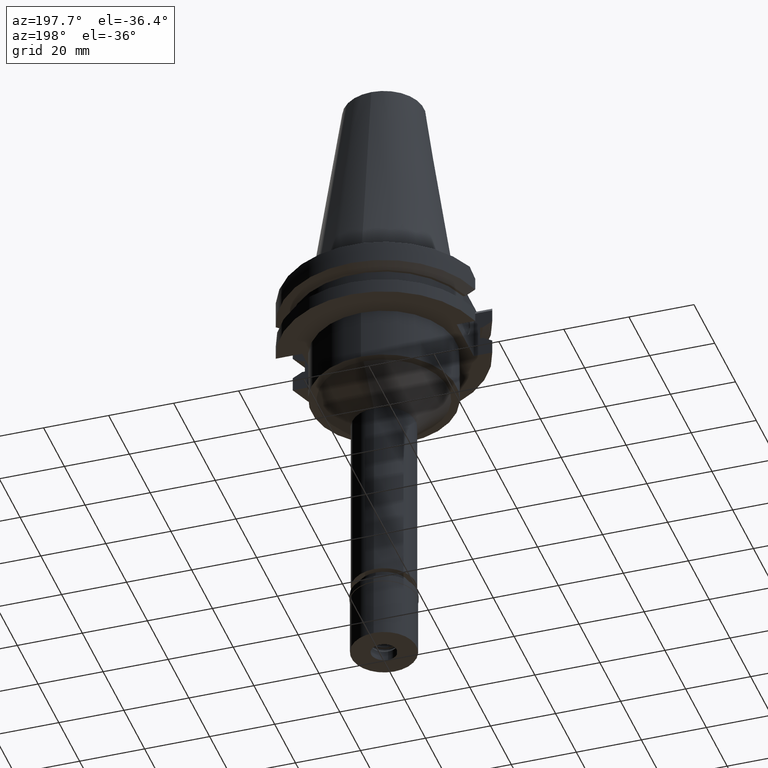
[diagram: clean part render]
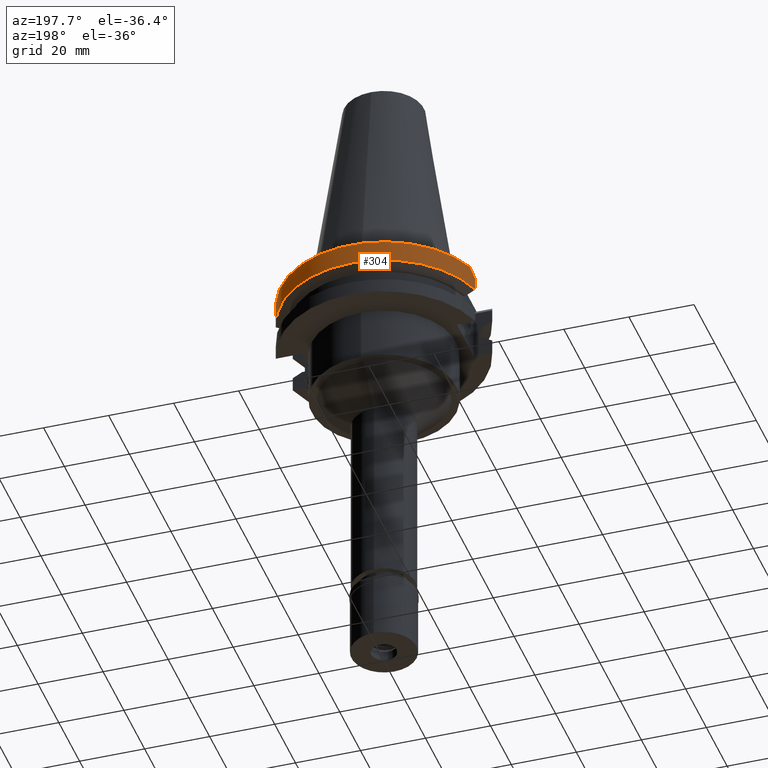
[diagram: same view with one face highlighted and labeled with its STEP entity id]
A machine part, auxiliary view. The second image highlights one B-rep face of the part: STEP entity #304.
In plain terms, the highlighted cylindrical surface (partial cylindrical patch) has radius 31.75 mm, axis along (0, 0, -1).
Its self-contained STEP definition (entity closure, byte-faithful):
#25 = CARTESIAN_POINT ( 'NONE',  ( 30.67550165944999918, 8.189999874299001448, -7.601334354241999769 ) ) ;
#49 = AXIS2_PLACEMENT_3D ( 'NONE', #1219, #1985, #729 ) ;
#155 = CARTESIAN_POINT ( 'NONE',  ( 30.67550165944999918, 8.189999874299001448, -7.601334354241999769 ) ) ;
#200 = CARTESIAN_POINT ( 'NONE',  ( 30.67550162588999640, 8.189999999999999503, -3.700000000000000178 ) ) ;
#304 = ADVANCED_FACE ( 'NONE', ( #1194 ), #2187, .T. ) ;
#343 = ORIENTED_EDGE ( 'NONE', *, *, #3115, .T. ) ;
#383 = DIRECTION ( 'NONE',  ( 4.149700359200944730E-08, 1.554267323633979793E-07, -0.9999999999999870104 ) ) ;
#384 = DIRECTION ( 'NONE',  ( 0.0000000000000000000, -1.000000000000000000, 0.0000000000000000000 ) ) ;
#460 = ORIENTED_EDGE ( 'NONE', *, *, #2111, .F. ) ;
#477 = CIRCLE ( 'NONE', #49, 31.74999999999998579 ) ;
#525 = LINE ( 'NONE', #25, #1619 ) ;
#729 = DIRECTION ( 'NONE',  ( 0.9661575315241073270, 0.2579527559055020958, 0.0000000000000000000 ) ) ;
#771 = EDGE_CURVE ( 'NONE', #838, #1631, #525, .T. ) ;
#819 = EDGE_LOOP ( 'NONE', ( #2467, #3004, #460, #343, #3320, #2140 ) ) ;
#820 = CARTESIAN_POINT ( 'NONE',  ( -30.43183015827551330, 9.102667216255303728, -2.787332783744695064 ) ) ;
#838 = VERTEX_POINT ( 'NONE', #155 ) ;
#839 = DIRECTION ( 'NONE',  ( -8.602505381978995699E-09, 3.222008692314998243E-08, 0.9999999999999994449 ) ) ;
#908 = DIRECTION ( 'NONE',  ( 0.0000000000000000000, 0.0000000000000000000, -1.000000000000000000 ) ) ;
#976 = EDGE_CURVE ( 'NONE', #1708, #1701, #2961, .T. ) ;
#1015 = CARTESIAN_POINT ( 'NONE',  ( -29.82399034335000110, 10.89000000000000057, -1.000000000000000000 ) ) ;
#1043 = B_SPLINE_CURVE_WITH_KNOTS ( 'NONE', 3,
 ( #1015, #2562, #820, #2852 ),
 .UNSPECIFIED., .F., .F.,
 ( 4, 4 ),
 ( 0.0000000000000000000, 1.000000000000000000 ),
 .UNSPECIFIED. ) ;
#1044 = CIRCLE ( 'NONE', #2948, 31.75000000000000000 ) ;
#1194 = FACE_OUTER_BOUND ( 'NONE', #819, .T. ) ;
#1219 = CARTESIAN_POINT ( 'NONE',  ( 0.0000000000000000000, 0.0000000000000000000, -7.601333230925999551 ) ) ;
#1362 = CARTESIAN_POINT ( 'NONE',  ( -29.82399034335000110, 10.89000000000000057, -1.000000000000000000 ) ) ;
#1619 = VECTOR ( 'NONE', #839, 1000.000000000000114 ) ;
#1631 = VERTEX_POINT ( 'NONE', #200 ) ;
#1636 = EDGE_CURVE ( 'NONE', #838, #1701, #477, .T. ) ;
#1701 = VERTEX_POINT ( 'NONE', #1748 ) ;
#1705 = CARTESIAN_POINT ( 'NONE',  ( 0.0000000000000000000, 0.0000000000000000000, 77.61249999999999716 ) ) ;
#1708 = VERTEX_POINT ( 'NONE', #1733 ) ;
#1722 = CARTESIAN_POINT ( 'NONE',  ( 30.43183015827552040, 9.102667216255303728, -2.787332783744695064 ) ) ;
#1733 = CARTESIAN_POINT ( 'NONE',  ( -30.67550162588999640, 8.189999999999999503, -3.700000000000000178 ) ) ;
#1748 = CARTESIAN_POINT ( 'NONE',  ( -30.67550146399999988, 8.190000606370999137, -7.601327812044000432 ) ) ;
#1973 = EDGE_CURVE ( 'NONE', #1631, #2674, #2747, .T. ) ;
#1985 = DIRECTION ( 'NONE',  ( 0.0000000000000000000, 0.0000000000000000000, 1.000000000000000000 ) ) ;
#1992 = CARTESIAN_POINT ( 'NONE',  ( 30.14799306409551960, 10.00266721625513888, -1.887332783744861242 ) ) ;
#2068 = DIRECTION ( 'NONE',  ( 0.0000000000000000000, 1.000000000000000000, 0.0000000000000000000 ) ) ;
#2111 = EDGE_CURVE ( 'NONE', #3315, #1708, #1043, .T. ) ;
#2140 = ORIENTED_EDGE ( 'NONE', *, *, #771, .F. ) ;
#2187 = CYLINDRICAL_SURFACE ( 'NONE', #2814, 31.75000000000000000 ) ;
#2331 = CARTESIAN_POINT ( 'NONE',  ( 29.82399034335000110, 10.89000000000000057, -1.000000000001000089 ) ) ;
#2358 = CARTESIAN_POINT ( 'NONE',  ( 0.0000000000000000000, 0.0000000000000000000, -1.000000000000000000 ) ) ;
#2467 = ORIENTED_EDGE ( 'NONE', *, *, #1636, .T. ) ;
#2562 = CARTESIAN_POINT ( 'NONE',  ( -30.14799306409551249, 10.00266721625513888, -1.887332783744861242 ) ) ;
#2639 = VECTOR ( 'NONE', #383, 1000.000000000000227 ) ;
#2668 = CARTESIAN_POINT ( 'NONE',  ( -30.67550162588999640, 8.189999999999999503, -3.700000000000000178 ) ) ;
#2674 = VERTEX_POINT ( 'NONE', #2331 ) ;
#2747 = B_SPLINE_CURVE_WITH_KNOTS ( 'NONE', 3,
 ( #3253, #1722, #1992, #3041 ),
 .UNSPECIFIED., .F., .F.,
 ( 4, 4 ),
 ( 0.0000000000000000000, 1.000000000000000000 ),
 .UNSPECIFIED. ) ;
#2814 = AXIS2_PLACEMENT_3D ( 'NONE', #1705, #908, #384 ) ;
#2852 = CARTESIAN_POINT ( 'NONE',  ( -30.67550162588999640, 8.189999999999999503, -3.700000000000000178 ) ) ;
#2859 = DIRECTION ( 'NONE',  ( 0.0000000000000000000, 0.0000000000000000000, -1.000000000000000000 ) ) ;
#2948 = AXIS2_PLACEMENT_3D ( 'NONE', #2358, #2859, #2068 ) ;
#2961 = LINE ( 'NONE', #2668, #2639 ) ;
#3004 = ORIENTED_EDGE ( 'NONE', *, *, #976, .F. ) ;
#3041 = CARTESIAN_POINT ( 'NONE',  ( 29.82399034335000110, 10.89000000000000057, -1.000000000001000089 ) ) ;
#3115 = EDGE_CURVE ( 'NONE', #3315, #2674, #1044, .T. ) ;
#3253 = CARTESIAN_POINT ( 'NONE',  ( 30.67550162588999640, 8.189999999999999503, -3.700000000000000178 ) ) ;
#3315 = VERTEX_POINT ( 'NONE', #1362 ) ;
#3320 = ORIENTED_EDGE ( 'NONE', *, *, #1973, .F. ) ;